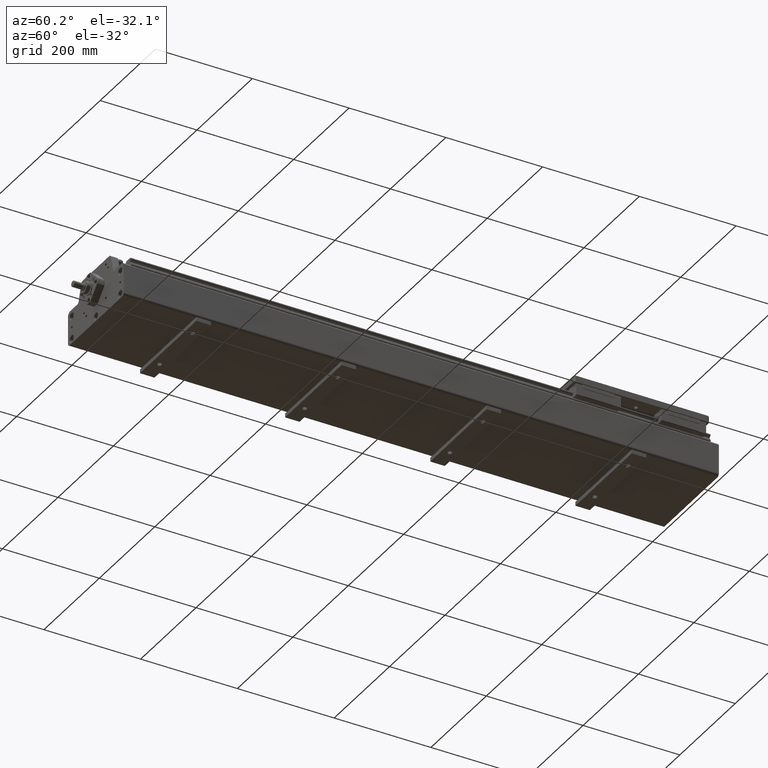
[diagram: clean part render]
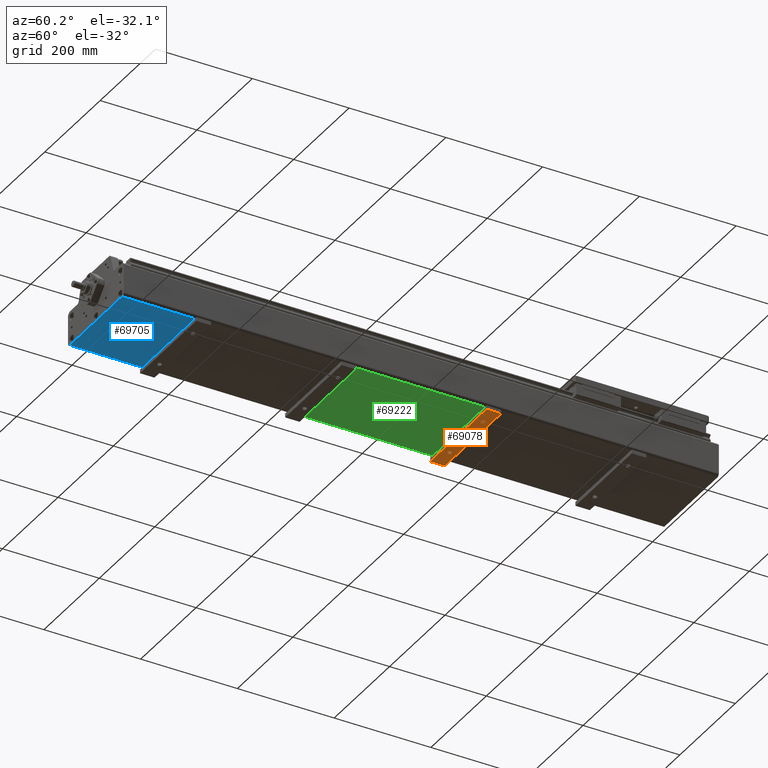
[diagram: same view with three faces highlighted in distinct colors, each labeled with its STEP entity id]
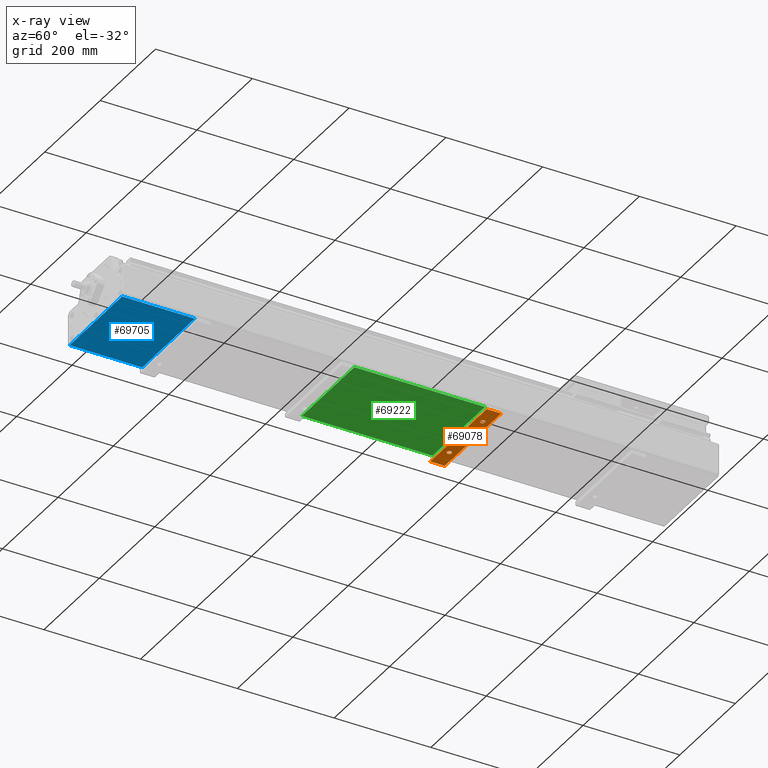
[diagram: x-ray of the same camera — body ghosted, the three highlighted faces saturated]
A machine part, auxiliary view with three faces highlighted in distinct colors.
The next image is the same camera in x-ray (body ghosted, the three faces saturated) — at least one of them is partly hidden behind the body in this view.
Their STEP definitions:

[orange] entity #69078 — the highlighted planar face has unit normal (0, 0, 1).
#69017=CARTESIAN_POINT('',(3.250000000000120,864.999999999999890,1.865175E-013));
#69018=DIRECTION('',(0.0,0.0,1.0));
#69019=DIRECTION('',(-1.0,0.0,0.0));
#69020=AXIS2_PLACEMENT_3D('',#69017,#69018,#69019);
#69021=PLANE('',#69020);
#69022=CARTESIAN_POINT('',(213.250000000000140,565.0,3.397282E-013));
#69023=VERTEX_POINT('',#69022);
#69024=CARTESIAN_POINT('',(9.500000000000116,565.0,1.909584E-013));
#69025=VERTEX_POINT('',#69024);
#69026=CARTESIAN_POINT('',(213.250000000000140,565.0,3.397282E-013));
#69027=DIRECTION('',(-1.0,0.0,0.0));
#69028=VECTOR('',#69027,203.750000000000030);
#69029=LINE('',#69026,#69028);
#69030=EDGE_CURVE('',#69023,#69025,#69029,.T.);
#69031=ORIENTED_EDGE('',*,*,#69030,.F.);
#69032=CARTESIAN_POINT('',(213.250000000000140,535.0,3.397282E-013));
#69033=VERTEX_POINT('',#69032);
#69034=CARTESIAN_POINT('',(213.250000000000140,535.0,3.397282E-013));
#69035=DIRECTION('',(0.0,1.0,0.0));
#69036=VECTOR('',#69035,30.0);
#69037=LINE('',#69034,#69036);
#69038=EDGE_CURVE('',#69033,#69023,#69037,.T.);
#69039=ORIENTED_EDGE('',*,*,#69038,.F.);
#69040=CARTESIAN_POINT('',(9.500000000000116,535.0,1.909584E-013));
#69041=VERTEX_POINT('',#69040);
#69042=CARTESIAN_POINT('',(9.500000000000116,535.0,1.909584E-013));
#69043=DIRECTION('',(1.0,0.0,0.0));
#69044=VECTOR('',#69043,203.750000000000030);
#69045=LINE('',#69042,#69044);
#69046=EDGE_CURVE('',#69041,#69033,#69045,.T.);
#69047=ORIENTED_EDGE('',*,*,#69046,.F.);
#69048=CARTESIAN_POINT('',(9.500000000000116,565.0,1.909584E-013));
#69049=DIRECTION('',(0.0,-1.0,0.0));
#69050=VECTOR('',#69049,30.0);
#69051=LINE('',#69048,#69050);
#69052=EDGE_CURVE('',#69025,#69041,#69051,.T.);
#69053=ORIENTED_EDGE('',*,*,#69052,.F.);
#69054=EDGE_LOOP('',(#69031,#69039,#69047,#69053));
#69055=FACE_OUTER_BOUND('',#69054,.T.);
#69056=CARTESIAN_POINT('',(47.446999999999960,550.0,7.549517E-014));
#69057=VERTEX_POINT('',#69056);
#69058=CARTESIAN_POINT('',(52.499999999999986,550.0,7.549517E-014));
#69059=DIRECTION('',(0.0,0.0,1.0));
#69060=DIRECTION('',(1.0,0.0,0.0));
#69061=AXIS2_PLACEMENT_3D('',#69058,#69059,#69060);
#69062=CIRCLE('',#69061,5.053000000000000);
#69063=EDGE_CURVE('',#69057,#69057,#69062,.T.);
#69064=ORIENTED_EDGE('',*,*,#69063,.T.);
#69065=EDGE_LOOP('',(#69064));
#69066=FACE_BOUND('',#69065,.T.);
#69067=CARTESIAN_POINT('',(167.446999999999970,550.0,1.065814E-013));
#69068=VERTEX_POINT('',#69067);
#69069=CARTESIAN_POINT('',(172.499999999999970,550.0,1.065814E-013));
#69070=DIRECTION('',(0.0,0.0,1.0));
#69071=DIRECTION('',(1.0,0.0,0.0));
#69072=AXIS2_PLACEMENT_3D('',#69069,#69070,#69071);
#69073=CIRCLE('',#69072,5.053000000000000);
#69074=EDGE_CURVE('',#69068,#69068,#69073,.T.);
#69075=ORIENTED_EDGE('',*,*,#69074,.T.);
#69076=EDGE_LOOP('',(#69075));
#69077=FACE_BOUND('',#69076,.T.);
#69078=ADVANCED_FACE('',(#69055,#69066,#69077),#69021,.F.);

[blue] entity #69705 — the highlighted planar face has unit normal (0, 0, -1).
#6068=CARTESIAN_POINT('',(17.750000000000036,-215.0,7.999999999999972));
#6069=VERTEX_POINT('',#6068);
#6077=CARTESIAN_POINT('',(207.250000000000000,-215.0,8.000000000000028));
#6078=VERTEX_POINT('',#6077);
#6079=CARTESIAN_POINT('',(207.250000000000000,-215.0,8.000000000000028));
#6080=DIRECTION('',(-1.0,0.0,0.0));
#6081=VECTOR('',#6080,189.499999999999970);
#6082=LINE('',#6079,#6081);
#6083=EDGE_CURVE('',#6078,#6069,#6082,.T.);
#69474=CARTESIAN_POINT('',(207.250000000000000,-65.0,8.000000000000069));
#69475=VERTEX_POINT('',#69474);
#69512=CARTESIAN_POINT('',(17.750000000000039,-65.0,8.000000000000069));
#69513=VERTEX_POINT('',#69512);
#69661=CARTESIAN_POINT('',(17.750000000000039,-65.0,8.000000000000069));
#69662=DIRECTION('',(1.0,0.0,0.0));
#69663=VECTOR('',#69662,189.499999999999970);
#69664=LINE('',#69661,#69663);
#69665=EDGE_CURVE('',#69513,#69475,#69664,.T.);
#69684=CARTESIAN_POINT('',(213.250000000000060,1002.500000000000000,8.000000000000112));
#69685=DIRECTION('',(0.0,0.0,-1.0));
#69686=DIRECTION('',(0.0,1.0,0.0));
#69687=AXIS2_PLACEMENT_3D('',#69684,#69685,#69686);
#69688=PLANE('',#69687);
#69689=ORIENTED_EDGE('',*,*,#69665,.T.);
#69690=CARTESIAN_POINT('',(207.250000000000000,-215.0,8.000000000000028));
#69691=DIRECTION('',(0.0,1.0,0.0));
#69692=VECTOR('',#69691,150.0);
#69693=LINE('',#69690,#69692);
#69694=EDGE_CURVE('',#6078,#69475,#69693,.T.);
#69695=ORIENTED_EDGE('',*,*,#69694,.F.);
#69696=ORIENTED_EDGE('',*,*,#6083,.T.);
#69697=CARTESIAN_POINT('',(17.750000000000039,-65.0,8.000000000000069));
#69698=DIRECTION('',(0.0,-1.0,0.0));
#69699=VECTOR('',#69698,150.0);
#69700=LINE('',#69697,#69699);
#69701=EDGE_CURVE('',#69513,#6069,#69700,.T.);
#69702=ORIENTED_EDGE('',*,*,#69701,.F.);
#69703=EDGE_LOOP('',(#69689,#69695,#69696,#69702));
#69704=FACE_OUTER_BOUND('',#69703,.T.);
#69705=ADVANCED_FACE('',(#69704),#69688,.T.);

[green] entity #69222 — the highlighted planar face has unit normal (0, 0, -1).
#68942=CARTESIAN_POINT('',(207.250000000000000,535.0,8.000000000000069));
#68943=VERTEX_POINT('',#68942);
#68984=CARTESIAN_POINT('',(17.750000000000039,535.0,8.000000000000069));
#68985=VERTEX_POINT('',#68984);
#69138=CARTESIAN_POINT('',(17.750000000000039,535.0,8.000000000000069));
#69139=DIRECTION('',(1.0,0.0,0.0));
#69140=VECTOR('',#69139,189.499999999999970);
#69141=LINE('',#69138,#69140);
#69142=EDGE_CURVE('',#68985,#68943,#69141,.T.);
#69192=CARTESIAN_POINT('',(213.250000000000060,1002.500000000000000,8.000000000000112));
#69193=DIRECTION('',(0.0,0.0,-1.0));
#69194=DIRECTION('',(0.0,1.0,0.0));
#69195=AXIS2_PLACEMENT_3D('',#69192,#69193,#69194);
#69196=PLANE('',#69195);
#69197=ORIENTED_EDGE('',*,*,#69142,.T.);
#69198=CARTESIAN_POINT('',(207.250000000000000,265.0,8.000000000000110));
#69199=VERTEX_POINT('',#69198);
#69200=CARTESIAN_POINT('',(207.250000000000000,265.0,8.000000000000110));
#69201=DIRECTION('',(0.0,1.0,0.0));
#69202=VECTOR('',#69201,270.0);
#69203=LINE('',#69200,#69202);
#69204=EDGE_CURVE('',#69199,#68943,#69203,.T.);
#69205=ORIENTED_EDGE('',*,*,#69204,.F.);
#69206=CARTESIAN_POINT('',(17.750000000000039,265.0,8.000000000000076));
#69207=VERTEX_POINT('',#69206);
#69208=CARTESIAN_POINT('',(207.250000000000000,265.0,8.000000000000110));
#69209=DIRECTION('',(-1.0,0.0,0.0));
#69210=VECTOR('',#69209,189.499999999999970);
#69211=LINE('',#69208,#69210);
#69212=EDGE_CURVE('',#69199,#69207,#69211,.T.);
#69213=ORIENTED_EDGE('',*,*,#69212,.T.);
#69214=CARTESIAN_POINT('',(17.750000000000039,535.0,8.000000000000069));
#69215=DIRECTION('',(0.0,-1.0,0.0));
#69216=VECTOR('',#69215,270.0);
#69217=LINE('',#69214,#69216);
#69218=EDGE_CURVE('',#68985,#69207,#69217,.T.);
#69219=ORIENTED_EDGE('',*,*,#69218,.F.);
#69220=EDGE_LOOP('',(#69197,#69205,#69213,#69219));
#69221=FACE_OUTER_BOUND('',#69220,.T.);
#69222=ADVANCED_FACE('',(#69221),#69196,.T.);